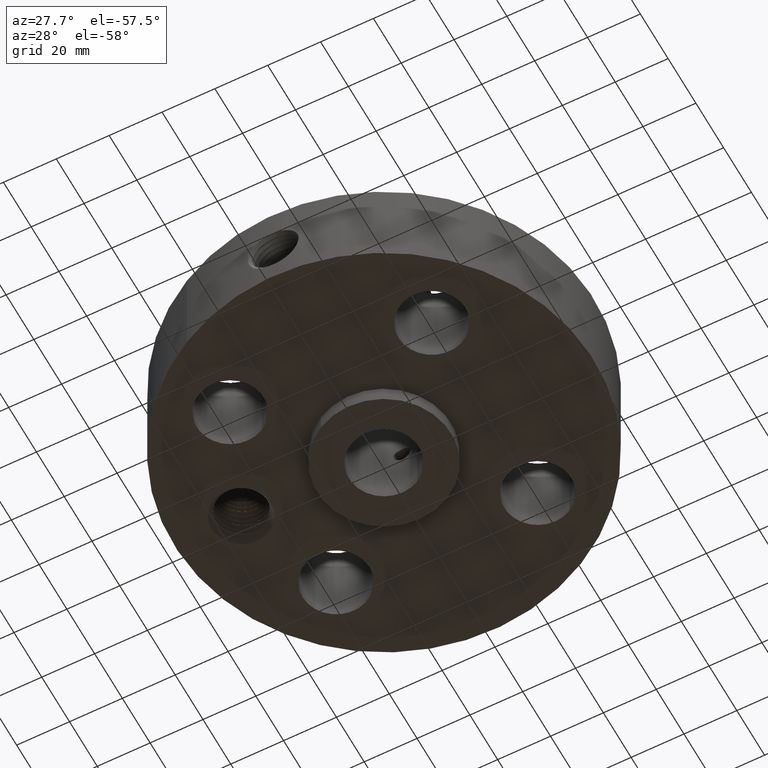
[diagram: clean part render]
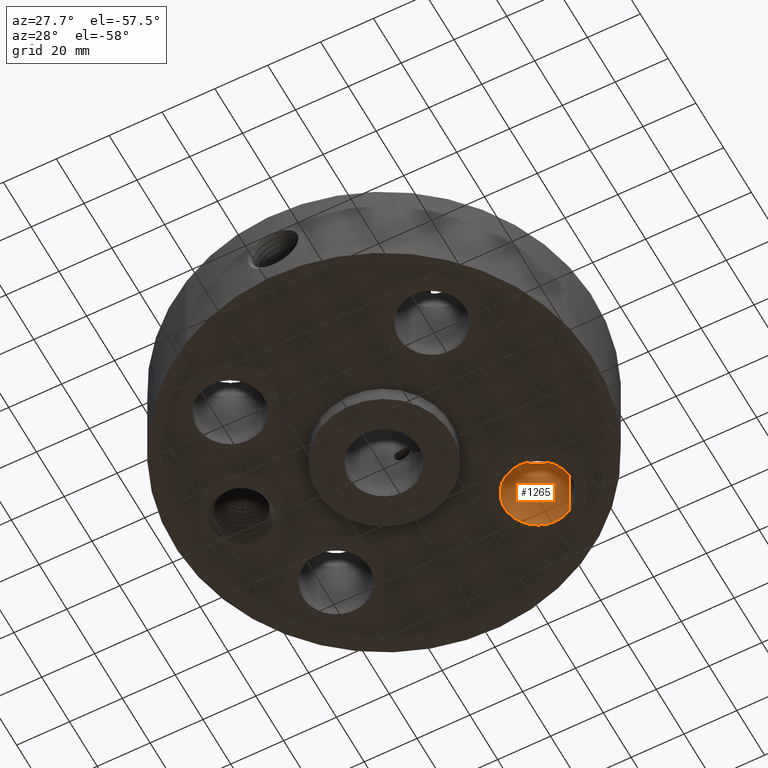
[diagram: same view with one face highlighted and labeled with its STEP entity id]
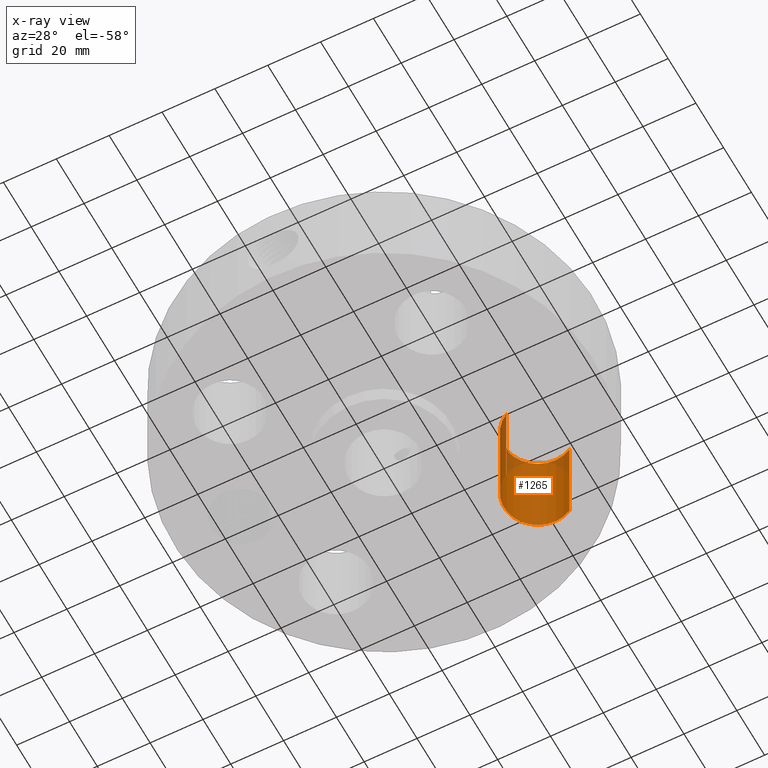
[diagram: x-ray of the same camera — body ghosted, the highlighted face saturated]
A machine part, auxiliary view. The second image highlights one B-rep face of the part: STEP entity #1265.
The next image is the same camera in x-ray: the body ghosted, the highlighted face saturated — about 13% of this face is hidden behind the body in this view.
In plain terms, the highlighted cylindrical surface (partial cylindrical patch) has radius 12.7 mm, axis along (0, 0, -1).
Its self-contained STEP definition (entity closure, byte-faithful):
#296=AXIS2_PLACEMENT_3D('Circle Axis2P3D',#294,#295,$) ;
#550=AXIS2_PLACEMENT_3D('Circle Axis2P3D',#548,#549,$) ;
#1247=AXIS2_PLACEMENT_3D('Cylinder Axis2P3D',#1244,#1245,#1246) ;
#294=CARTESIAN_POINT('Axis2P3D Location',(1.50260191003,1.50260191003,0.250000000001)) ;
#298=CARTESIAN_POINT('Vertex',(1.26288914072,1.06381062908,0.250000000001)) ;
#300=CARTESIAN_POINT('Vertex',(1.74231467933,1.94139319097,0.250000000001)) ;
#543=CARTESIAN_POINT('Vertex',(1.74231467933,1.94139319097,1.75000000001)) ;
#545=CARTESIAN_POINT('Vertex',(1.26288914072,1.06381062908,1.75000000001)) ;
#548=CARTESIAN_POINT('Axis2P3D Location',(1.50260191003,1.50260191003,1.75000000001)) ;
#1244=CARTESIAN_POINT('Axis2P3D Location',(1.50260191003,1.50260191003,1.74606299213)) ;
#1249=CARTESIAN_POINT('Line Origine',(1.26288914072,1.06381062908,1.)) ;
#1254=CARTESIAN_POINT('Line Origine',(1.74231467933,1.94139319097,1.)) ;
#295=DIRECTION('Axis2P3D Direction',(0.,0.,-0.0393700787402)) ;
#549=DIRECTION('Axis2P3D Direction',(0.,0.,-0.0393700787402)) ;
#1245=DIRECTION('Axis2P3D Direction',(0.,0.,-0.0393700787402)) ;
#1246=DIRECTION('Axis2P3D XDirection',(0.0188750212049,0.0345504945626,0.)) ;
#1250=DIRECTION('Vector Direction',(0.,0.,-0.0393700787402)) ;
#1255=DIRECTION('Vector Direction',(0.,0.,-0.0393700787402)) ;
#1251=VECTOR('Line Direction',#1250,0.0393700787402) ;
#1256=VECTOR('Line Direction',#1255,0.0393700787402) ;
#1260=ORIENTED_EDGE('',*,*,#1253,.F.) ;
#1261=ORIENTED_EDGE('',*,*,#302,.T.) ;
#1262=ORIENTED_EDGE('',*,*,#1258,.T.) ;
#1263=ORIENTED_EDGE('',*,*,#552,.F.) ;
#1265=ADVANCED_FACE('PartBody',(#1264),#1248,.F.) ;
#297=CIRCLE('generated circle',#296,0.500000000002) ;
#551=CIRCLE('generated circle',#550,0.500000000002) ;
#1248=CYLINDRICAL_SURFACE('generated cylinder',#1247,0.500000000002) ;
#302=EDGE_CURVE('',#299,#301,#297,.T.) ;
#552=EDGE_CURVE('',#546,#544,#551,.T.) ;
#1253=EDGE_CURVE('',#299,#546,#1252,.F.) ;
#1258=EDGE_CURVE('',#301,#544,#1257,.F.) ;
#1259=EDGE_LOOP('',(#1260,#1261,#1262,#1263)) ;
#1264=FACE_OUTER_BOUND('',#1259,.T.) ;
#1252=LINE('Line',#1249,#1251) ;
#1257=LINE('Line',#1254,#1256) ;
#299=VERTEX_POINT('',#298) ;
#301=VERTEX_POINT('',#300) ;
#544=VERTEX_POINT('',#543) ;
#546=VERTEX_POINT('',#545) ;